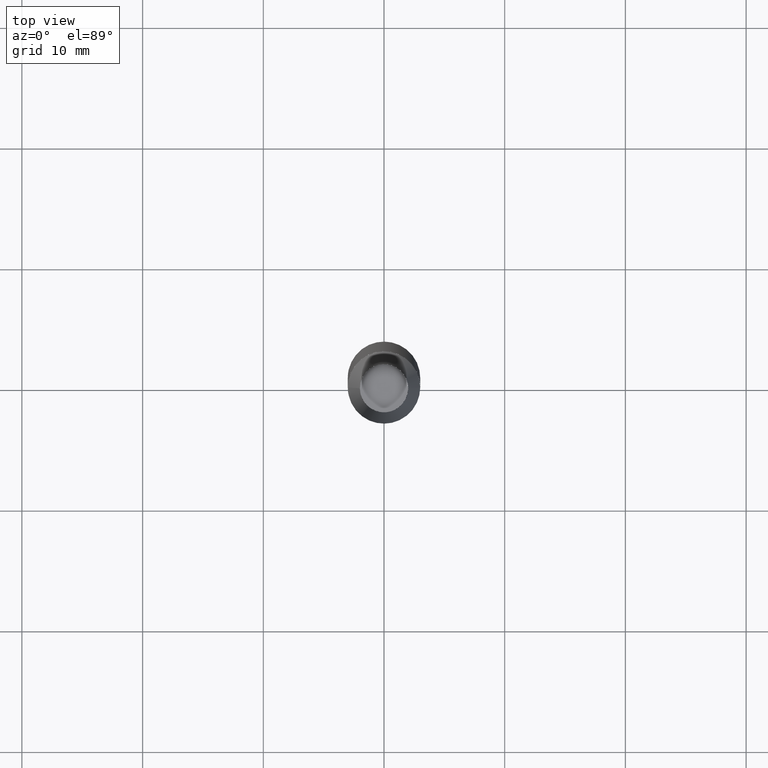
[diagram: clean part render]
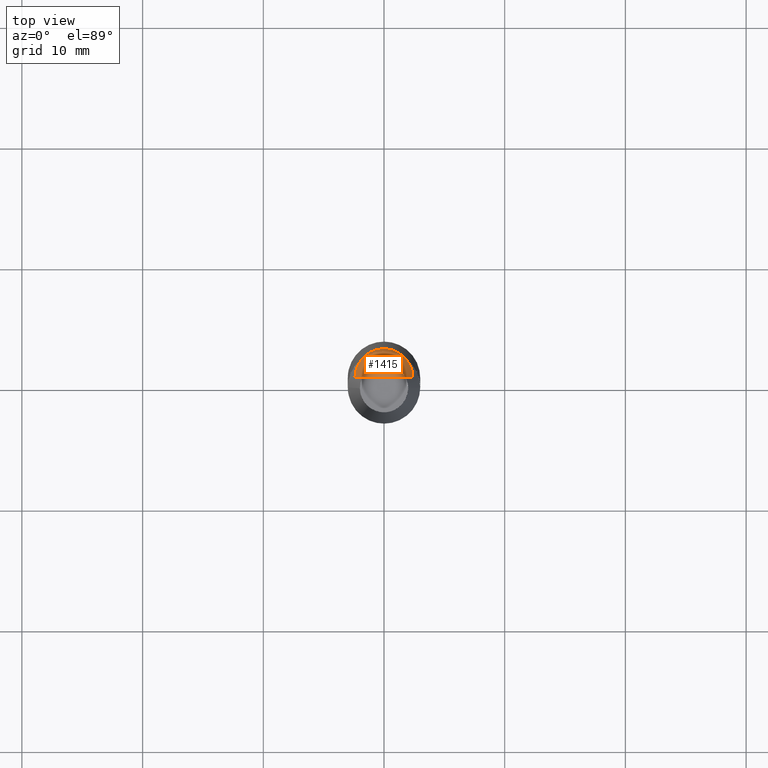
[diagram: same view with one face highlighted and labeled with its STEP entity id]
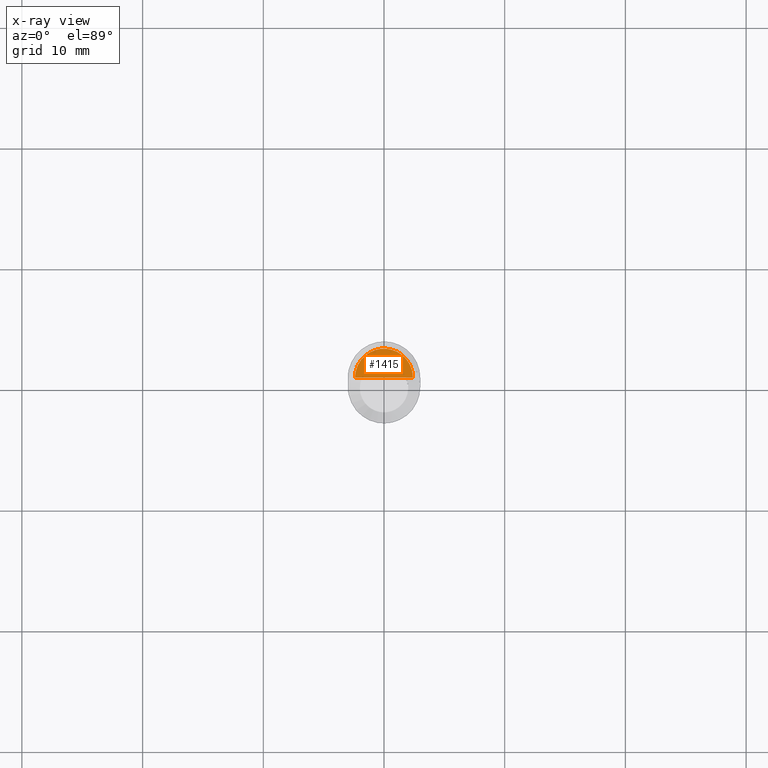
[diagram: x-ray of the same camera — body ghosted, the highlighted face saturated]
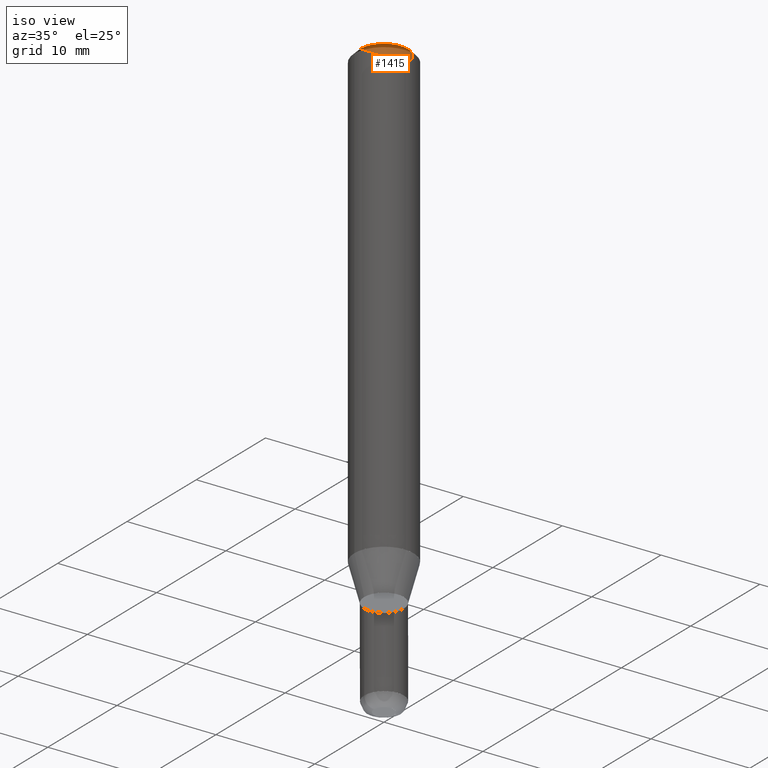
[diagram: same view with one face highlighted and labeled with its STEP entity id]
A machine part, top view. The second image highlights one B-rep face of the part: STEP entity #1415.
The next image is the same camera in x-ray: the body ghosted, the highlighted face saturated — about 0% of this face is hidden behind the body in this view.
A second angle (iso view) of the same face is appended — the face is thin or edge-on in the first view.
In plain terms, the highlighted face is a freeform B-spline surface patch.
Its self-contained STEP definition (entity closure, byte-faithful):
#1152=CARTESIAN_POINT('',(2.4,0.0,46.267949192431));
#1153=CARTESIAN_POINT('',(2.4,2.4,46.267949192431));
#1154=CARTESIAN_POINT('',(0.0,2.4,46.267949192431));
#1155=CARTESIAN_POINT('',(-2.4,2.4,46.267949192431));
#1156=CARTESIAN_POINT('',(-2.4,0.0,46.267949192431));
#1157=CARTESIAN_POINT('',(0.0,0.0,46.267949192431));
#1400=(
BOUNDED_SURFACE()
B_SPLINE_SURFACE(1,2,(
(#1152,#1153,#1154,#1155,#1156),
(#1157,#1157,#1157,#1157,#1157)
), .UNSPECIFIED.,.F.,.F.,.F.)
B_SPLINE_SURFACE_WITH_KNOTS((2,2),(3,2,3),(
0.0,1.0),(
0.0,0.5,1.0), .UNSPECIFIED.)
GEOMETRIC_REPRESENTATION_ITEM()
RATIONAL_B_SPLINE_SURFACE(((1.0,0.707106781187,1.0,0.707106781187,1.0),
(1.0,0.707106781187,1.0,0.707106781187,1.0)
))
REPRESENTATION_ITEM('')
SURFACE()
);
#1401=(
BOUNDED_CURVE()
B_SPLINE_CURVE(1,(#1157,#1152),.UNSPECIFIED.,.F.,.F.)
B_SPLINE_CURVE_WITH_KNOTS((2,2),
(0.0,1.0),.UNSPECIFIED.)
CURVE()
GEOMETRIC_REPRESENTATION_ITEM()
RATIONAL_B_SPLINE_CURVE((1.0,1.0))
REPRESENTATION_ITEM('')
);
#1402=(
BOUNDED_CURVE()
B_SPLINE_CURVE(2,(#1152,#1153,#1154,#1155,#1156),.UNSPECIFIED.,.F.,.F.)
B_SPLINE_CURVE_WITH_KNOTS((3,2,3),
(0.0,0.5,1.0),.UNSPECIFIED.)
CURVE()
GEOMETRIC_REPRESENTATION_ITEM()
RATIONAL_B_SPLINE_CURVE((1.0,0.707106781187,1.0,0.707106781187,1.0))
REPRESENTATION_ITEM('')
);
#1403=(
BOUNDED_CURVE()
B_SPLINE_CURVE(1,(#1156,#1157),.UNSPECIFIED.,.F.,.F.)
B_SPLINE_CURVE_WITH_KNOTS((2,2),
(0.0,1.0),.UNSPECIFIED.)
CURVE()
GEOMETRIC_REPRESENTATION_ITEM()
RATIONAL_B_SPLINE_CURVE((1.0,1.0))
REPRESENTATION_ITEM('')
);
#1404=VERTEX_POINT('',#1152);
#1405=VERTEX_POINT('',#1156);
#1406=VERTEX_POINT('',#1157);
#1407=EDGE_CURVE('',#1406,#1404,#1401,.T.);
#1408=EDGE_CURVE('',#1404,#1405,#1402,.T.);
#1409=EDGE_CURVE('',#1405,#1406,#1403,.T.);
#1410=ORIENTED_EDGE('',*,*,#1407,.T.);
#1411=ORIENTED_EDGE('',*,*,#1408,.T.);
#1412=ORIENTED_EDGE('',*,*,#1409,.T.);
#1413=EDGE_LOOP('',(#1410,#1411,#1412));
#1414=FACE_OUTER_BOUND('',#1413,.T.);
#1415=ADVANCED_FACE('',(#1414),#1400,.T.);